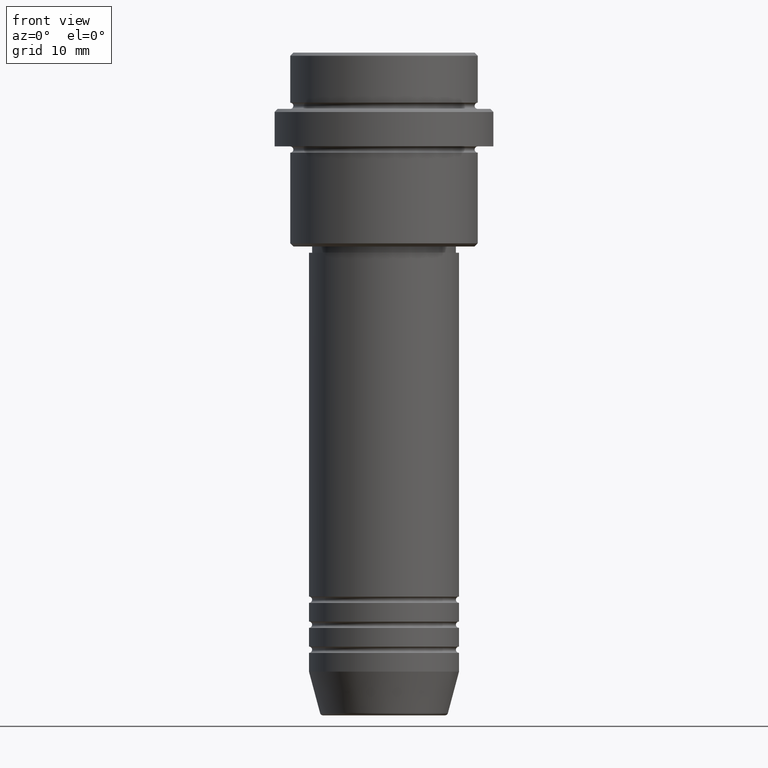
[diagram: clean part render]
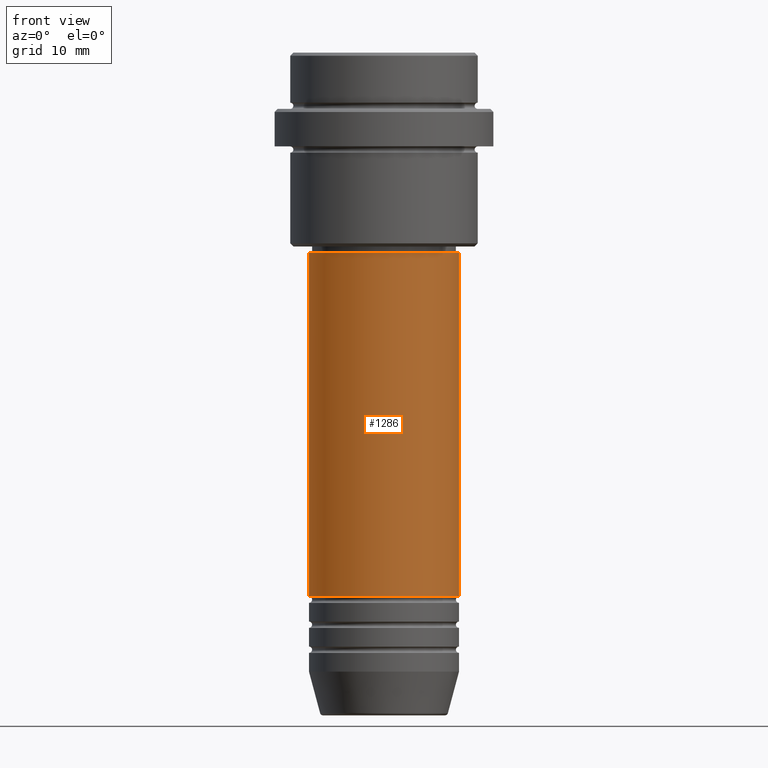
[diagram: same view with one face highlighted and labeled with its STEP entity id]
A machine part, front view. The second image highlights one B-rep face of the part: STEP entity #1286.
In plain terms, the highlighted cylindrical surface (partial cylindrical patch) has radius 12 mm, axis along (-0, -0, 1).
Its self-contained STEP definition (entity closure, byte-faithful):
#33 = ORIENTED_EDGE ( 'NONE', *, *, #166, .T. ) ;
#34 = VERTEX_POINT ( 'NONE', #631 ) ;
#92 = EDGE_CURVE ( 'NONE', #729, #201, #1181, .T. ) ;
#121 = CARTESIAN_POINT ( 'NONE',  ( 0.000000000000000000, 0.000000000000000000, -86.99999999999988631 ) ) ;
#124 = AXIS2_PLACEMENT_3D ( 'NONE', #121, #548, #1111 ) ;
#129 = EDGE_LOOP ( 'NONE', ( #805, #33, #496, #1141 ) ) ;
#166 = EDGE_CURVE ( 'NONE', #729, #352, #735, .T. ) ;
#175 = EDGE_CURVE ( 'NONE', #201, #34, #1034, .T. ) ;
#201 = VERTEX_POINT ( 'NONE', #1298 ) ;
#237 = DIRECTION ( 'NONE',  ( 1.000000000000000000, 0.000000000000000000, 0.000000000000000000 ) ) ;
#305 = CARTESIAN_POINT ( 'NONE',  ( 0.000000000000000000, 0.000000000000000000, 0.000000000000000000 ) ) ;
#352 = VERTEX_POINT ( 'NONE', #1049 ) ;
#461 = CARTESIAN_POINT ( 'NONE',  ( 0.000000000000000000, 0.000000000000000000, -31.99999999999997868 ) ) ;
#496 = ORIENTED_EDGE ( 'NONE', *, *, #592, .T. ) ;
#548 = DIRECTION ( 'NONE',  ( -0.000000000000000000, -0.000000000000000000, 1.000000000000000000 ) ) ;
#570 = CARTESIAN_POINT ( 'NONE',  ( 12.00000000000000000, 0.000000000000000000, 0.000000000000000000 ) ) ;
#577 = AXIS2_PLACEMENT_3D ( 'NONE', #305, #744, #836 ) ;
#578 = DIRECTION ( 'NONE',  ( -0.000000000000000000, -0.000000000000000000, 1.000000000000000000 ) ) ;
#592 = EDGE_CURVE ( 'NONE', #352, #34, #792, .T. ) ;
#606 = CARTESIAN_POINT ( 'NONE',  ( -12.00000000000000000, 1.469576158976823947E-15, -86.99999999999988631 ) ) ;
#631 = CARTESIAN_POINT ( 'NONE',  ( 11.99999999999999822, 0.000000000000000000, -31.99999999999997868 ) ) ;
#729 = VERTEX_POINT ( 'NONE', #606 ) ;
#735 = CIRCLE ( 'NONE', #124, 12.00000000000000000 ) ;
#744 = DIRECTION ( 'NONE',  ( -0.000000000000000000, -0.000000000000000000, 1.000000000000000000 ) ) ;
#748 = CARTESIAN_POINT ( 'NONE',  ( -12.00000000000000000, 1.469576158976823947E-15, 0.000000000000000000 ) ) ;
#792 = LINE ( 'NONE', #570, #842 ) ;
#805 = ORIENTED_EDGE ( 'NONE', *, *, #92, .F. ) ;
#836 = DIRECTION ( 'NONE',  ( 1.000000000000000000, 0.000000000000000000, 0.000000000000000000 ) ) ;
#842 = VECTOR ( 'NONE', #1318, 1000.000000000000000 ) ;
#932 = AXIS2_PLACEMENT_3D ( 'NONE', #461, #578, #237 ) ;
#1034 = CIRCLE ( 'NONE', #932, 11.99999999999999822 ) ;
#1044 = FACE_OUTER_BOUND ( 'NONE', #129, .T. ) ;
#1049 = CARTESIAN_POINT ( 'NONE',  ( 12.00000000000000000, 0.000000000000000000, -86.99999999999988631 ) ) ;
#1111 = DIRECTION ( 'NONE',  ( 1.000000000000000000, 0.000000000000000000, 0.000000000000000000 ) ) ;
#1141 = ORIENTED_EDGE ( 'NONE', *, *, #175, .F. ) ;
#1167 = DIRECTION ( 'NONE',  ( -0.000000000000000000, -0.000000000000000000, 1.000000000000000000 ) ) ;
#1181 = LINE ( 'NONE', #748, #1244 ) ;
#1244 = VECTOR ( 'NONE', #1167, 1000.000000000000000 ) ;
#1279 = CYLINDRICAL_SURFACE ( 'NONE', #577, 12.00000000000000000 ) ;
#1286 = ADVANCED_FACE ( 'NONE', ( #1044 ), #1279, .T. ) ;
#1298 = CARTESIAN_POINT ( 'NONE',  ( -11.99999999999999822, 1.469576158976823750E-15, -31.99999999999997868 ) ) ;
#1318 = DIRECTION ( 'NONE',  ( -0.000000000000000000, -0.000000000000000000, 1.000000000000000000 ) ) ;